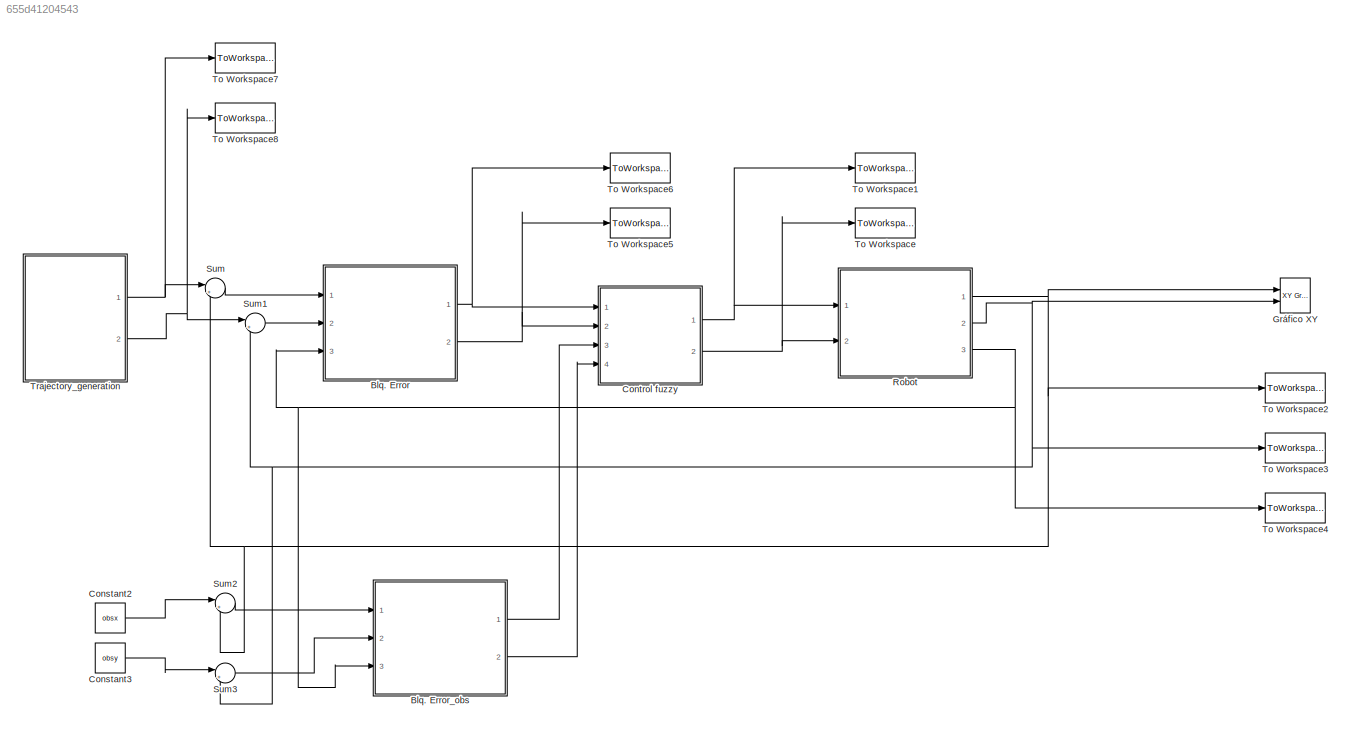
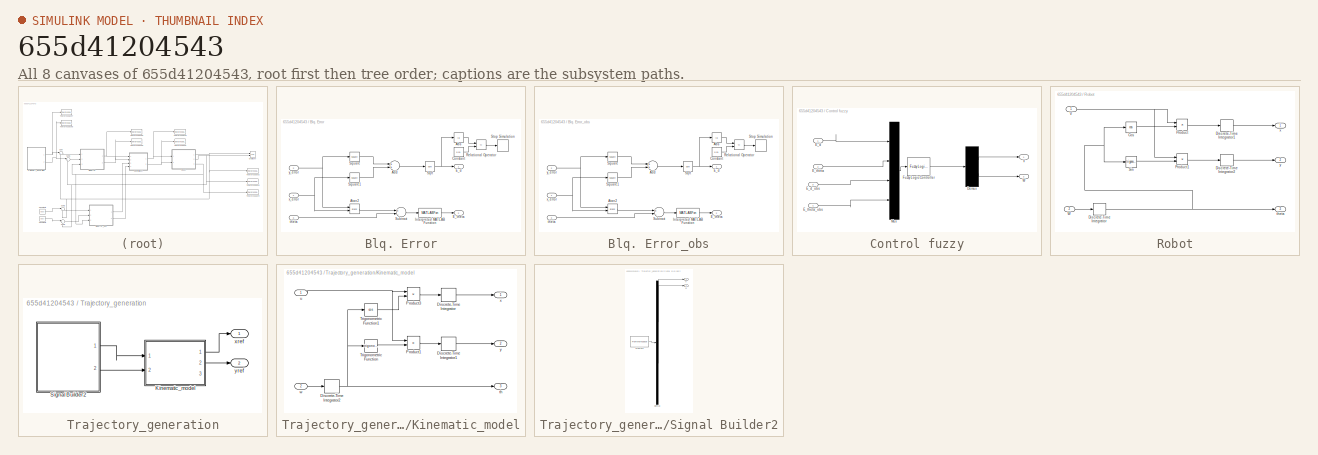
[diagram: thumbnail index - all 8 canvases of the model, root first then tree order]
MODEL slx_655d41204543
KIND model
CONFIG AbsTol = auto
CONFIG EnableMultiTasking = off
CONFIG FixedStep = Ts
CONFIG MaxStep = auto
CONFIG MinStep = auto
CONFIG RelTol = 1e-3
CONFIG SampleTimeConstraint = Unconstrained
CONFIG Solver = ode3
CONFIG SolverName = ode3
CONFIG StartTime = 0.0
CONFIG StopTime = 100.0
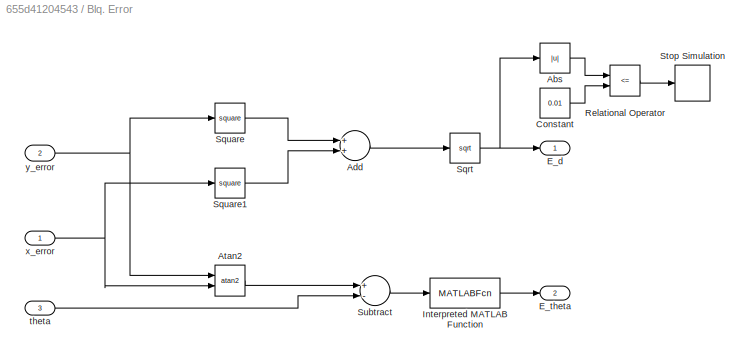
BLOCK [SubSystem] Blq. Error
  Ports = [3, 2]
  RequestExecContextInheritance = off
BLOCK [Abs] Blq. Error/Abs
  SaturateOnIntegerOverflow = off
BLOCK [Sum] Blq. Error/Add
  InputSameDT = off
  OutDataTypeStr = Inherit: Inherit via internal rule
  Ports = [2, 1]
  SaturateOnIntegerOverflow = off
BLOCK [Trigonometry] Blq. Error/Atan2
  Operator = atan2
  Ports = [2, 1]
BLOCK [Constant] Blq. Error/Constant
  Value = 0.01
BLOCK [Outport] Blq. Error/E_d
  IconDisplay = Port number
BLOCK [Outport] Blq. Error/E_theta
  IconDisplay = Port number
  OutMax = [pi]
  OutMin = [-pi]
  Port = 2
BLOCK [MATLABFcn] Blq. Error/Interpreted MATLAB Function
  MATLABFcn = wrapToPi
  Ports = [1, 1]
BLOCK [RelationalOperator] Blq. Error/Relational Operator
  InputSameDT = off
  Operator = <=
  OutDataTypeStr = boolean
  Ports = [2, 1]
  RndMeth = Simplest
BLOCK [Sqrt] Blq. Error/Sqrt
BLOCK [Math] Blq. Error/Square
  Operator = square
  Ports = [1, 1]
BLOCK [Math] Blq. Error/Square1
  Operator = square
  Ports = [1, 1]
BLOCK [Stop] Blq. Error/Stop Simulation
BLOCK [Sum] Blq. Error/Subtract
  InputSameDT = off
  Inputs = +-
  OutDataTypeStr = Inherit: Inherit via internal rule
  OutMax = [3.14]
  OutMin = [-3.14]
  Ports = [2, 1]
  SaturateOnIntegerOverflow = off
BLOCK [Inport] Blq. Error/theta
  IconDisplay = Port number
  Port = 3
BLOCK [Inport] Blq. Error/x_error
  IconDisplay = Port number
BLOCK [Inport] Blq. Error/y_error
  IconDisplay = Port number
  Port = 2
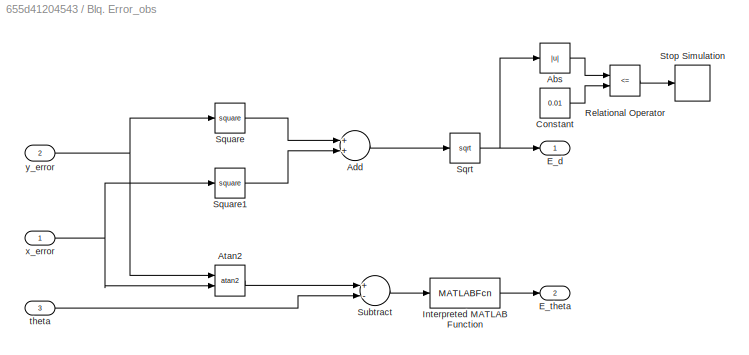
BLOCK [SubSystem] Blq. Error_obs
  Ports = [3, 2]
  RequestExecContextInheritance = off
BLOCK [Abs] Blq. Error_obs/Abs
  SaturateOnIntegerOverflow = off
BLOCK [Sum] Blq. Error_obs/Add
  InputSameDT = off
  OutDataTypeStr = Inherit: Inherit via internal rule
  Ports = [2, 1]
  SaturateOnIntegerOverflow = off
BLOCK [Trigonometry] Blq. Error_obs/Atan2
  Operator = atan2
  Ports = [2, 1]
BLOCK [Constant] Blq. Error_obs/Constant
  Value = 0.01
BLOCK [Outport] Blq. Error_obs/E_d
  IconDisplay = Port number
BLOCK [Outport] Blq. Error_obs/E_theta
  IconDisplay = Port number
  OutMax = [pi]
  OutMin = [-pi]
  Port = 2
BLOCK [MATLABFcn] Blq. Error_obs/Interpreted MATLAB Function
  MATLABFcn = wrapToPi
  Ports = [1, 1]
BLOCK [RelationalOperator] Blq. Error_obs/Relational Operator
  InputSameDT = off
  Operator = <=
  OutDataTypeStr = boolean
  Ports = [2, 1]
  RndMeth = Simplest
BLOCK [Sqrt] Blq. Error_obs/Sqrt
BLOCK [Math] Blq. Error_obs/Square
  Operator = square
  Ports = [1, 1]
BLOCK [Math] Blq. Error_obs/Square1
  Operator = square
  Ports = [1, 1]
BLOCK [Stop] Blq. Error_obs/Stop Simulation
BLOCK [Sum] Blq. Error_obs/Subtract
  InputSameDT = off
  Inputs = +-
  OutDataTypeStr = Inherit: Inherit via internal rule
  Ports = [2, 1]
  SaturateOnIntegerOverflow = off
BLOCK [Inport] Blq. Error_obs/theta
  IconDisplay = Port number
  Port = 3
BLOCK [Inport] Blq. Error_obs/x_error
  IconDisplay = Port number
BLOCK [Inport] Blq. Error_obs/y_error
  IconDisplay = Port number
  Port = 2
BLOCK [Constant] Constant2
  Value = obsx
BLOCK [Constant] Constant3
  Value = obsy
BLOCK [SubSystem] Control fuzzy
  Ports = [4, 2]
  RequestExecContextInheritance = off
BLOCK [Demux] Control fuzzy/Demux
  DisplayOption = bar
  Outputs = 2
  Ports = [1, 2]
BLOCK [Inport] Control fuzzy/E_d 
  IconDisplay = Port number
BLOCK [Inport] Control fuzzy/E_d_obs
  IconDisplay = Port number
  Port = 3
BLOCK [Inport] Control fuzzy/E_theta
  IconDisplay = Port number
  Port = 2
BLOCK [Inport] Control fuzzy/E_theta_obs
  IconDisplay = Port number
  Port = 4
BLOCK [Reference] Control fuzzy/Fuzzy Logic Controller  REF=fuzblock/Fuzzy Logic   (lib defined in mdl_858b3b3e7478)
Controller
  Ports = [1, 1]
  SourceBlock = fuzblock/Fuzzy Logic \nController
  SourceProductBaseCode = FL
  SourceProductName = Fuzzy Logic Toolbox
  SourceType = Fuzzy Inference System
BLOCK [Mux] Control fuzzy/Mux
  DisplayOption = bar
  Ports = [4, 1]
BLOCK [Outport] Control fuzzy/V
  IconDisplay = Port number
BLOCK [Outport] Control fuzzy/W 
  IconDisplay = Port number
  Port = 2
BLOCK [Reference] Gráfico XY  REF=simulink/Sinks/XY Graph
  Ports = [2]
  SourceBlock = simulink/Sinks/XY Graph
  SourceProductBaseCode = SL
  SourceProductName = Simulink
  SourceType = XY scope.
BLOCK [SubSystem] Robot
  Ports = [2, 3]
  RequestExecContextInheritance = off
BLOCK [Trigonometry] Robot/Cos
  Operator = cos
  Ports = [1, 1]
BLOCK [DiscreteIntegrator] Robot/Discrete-Time Integrator
  ICPrevOutput = DiscIntNeverNeededParam
  ICPrevScaledInput = DiscIntNeverNeededParam
  InitialConditionSetting = Auto
  Ports = [1, 1]
  SampleTime = -1
BLOCK [DiscreteIntegrator] Robot/Discrete-Time Integrator1
  ICPrevOutput = DiscIntNeverNeededParam
  ICPrevScaledInput = DiscIntNeverNeededParam
  InitialCondition = -4
  InitialConditionSetting = Auto
  Ports = [1, 1]
  SampleTime = -1
BLOCK [DiscreteIntegrator] Robot/Discrete-Time Integrator2
  ICPrevOutput = DiscIntNeverNeededParam
  ICPrevScaledInput = DiscIntNeverNeededParam
  InitialCondition = -4
  InitialConditionSetting = Auto
  Ports = [1, 1]
  SampleTime = -1
BLOCK [Product] Robot/Product
  InputSameDT = off
  OutDataTypeStr = Inherit: Inherit via internal rule
  Ports = [2, 1]
  RndMeth = Floor
  SaturateOnIntegerOverflow = off
BLOCK [Product] Robot/Product1
  InputSameDT = off
  OutDataTypeStr = Inherit: Inherit via internal rule
  Ports = [2, 1]
  RndMeth = Floor
  SaturateOnIntegerOverflow = off
BLOCK [Trigonometry] Robot/Sin
  Ports = [1, 1]
BLOCK [Inport] Robot/V
  IconDisplay = Port number
BLOCK [Inport] Robot/W
  IconDisplay = Port number
  Port = 2
BLOCK [Outport] Robot/theta
  IconDisplay = Port number
  Port = 3
BLOCK [Outport] Robot/x
  IconDisplay = Port number
BLOCK [Outport] Robot/y
  IconDisplay = Port number
  Port = 2
BLOCK [Sum] Sum
  IconShape = round
  InputSameDT = off
  Inputs = |+-
  OutDataTypeStr = Inherit: Inherit via internal rule
  Ports = [2, 1]
  SaturateOnIntegerOverflow = off
BLOCK [Sum] Sum1
  IconShape = round
  InputSameDT = off
  Inputs = |+-
  OutDataTypeStr = Inherit: Inherit via internal rule
  Ports = [2, 1]
  SaturateOnIntegerOverflow = off
BLOCK [Sum] Sum2
  IconShape = round
  InputSameDT = off
  Inputs = |+-
  OutDataTypeStr = Inherit: Inherit via internal rule
  Ports = [2, 1]
  SaturateOnIntegerOverflow = off
BLOCK [Sum] Sum3
  IconShape = round
  InputSameDT = off
  Inputs = |+-
  OutDataTypeStr = Inherit: Inherit via internal rule
  Ports = [2, 1]
  SaturateOnIntegerOverflow = off
BLOCK [ToWorkspace] To Workspace
  FixptAsFi = on
  MaxDataPoints = inf
  Ports = [1]
  SampleTime = -1
  Save2DSignal = 3-D array (concatenate along third dimension)
  SaveFormat = Structure With Time
  VariableName = W
BLOCK [ToWorkspace] To Workspace1
  FixptAsFi = on
  MaxDataPoints = inf
  Ports = [1]
  SampleTime = -1
  Save2DSignal = 3-D array (concatenate along third dimension)
  SaveFormat = Structure With Time
  VariableName = V
BLOCK [ToWorkspace] To Workspace2
  FixptAsFi = on
  MaxDataPoints = inf
  Ports = [1]
  SampleTime = -1
  Save2DSignal = 3-D array (concatenate along third dimension)
  SaveFormat = Structure With Time
  VariableName = salida_x
BLOCK [ToWorkspace] To Workspace3
  FixptAsFi = on
  MaxDataPoints = inf
  Ports = [1]
  SampleTime = -1
  Save2DSignal = 3-D array (concatenate along third dimension)
  SaveFormat = Structure With Time
  VariableName = salida_y
BLOCK [ToWorkspace] To Workspace4
  FixptAsFi = on
  MaxDataPoints = inf
  Ports = [1]
  SampleTime = -1
  Save2DSignal = 3-D array (concatenate along third dimension)
  SaveFormat = Structure With Time
  VariableName = salida_theta
BLOCK [ToWorkspace] To Workspace5
  FixptAsFi = on
  MaxDataPoints = inf
  Ports = [1]
  SampleTime = -1
  Save2DSignal = 3-D array (concatenate along third dimension)
  SaveFormat = Structure With Time
  VariableName = E_theta
BLOCK [ToWorkspace] To Workspace6
  FixptAsFi = on
  MaxDataPoints = inf
  Ports = [1]
  SampleTime = -1
  Save2DSignal = 3-D array (concatenate along third dimension)
  SaveFormat = Structure With Time
  VariableName = E_d
BLOCK [ToWorkspace] To Workspace7
  FixptAsFi = on
  MaxDataPoints = inf
  Ports = [1]
  SampleTime = -1
  Save2DSignal = 3-D array (concatenate along third dimension)
  SaveFormat = Structure With Time
  VariableName = salida_xref
BLOCK [ToWorkspace] To Workspace8
  FixptAsFi = on
  MaxDataPoints = inf
  Ports = [1]
  SampleTime = -1
  Save2DSignal = 3-D array (concatenate along third dimension)
  SaveFormat = Structure With Time
  VariableName = salida_yref
BLOCK [SubSystem] Trajectory_generation
  Ports = [0, 2]
  RequestExecContextInheritance = off
BLOCK [SubSystem] Trajectory_generation/Kinematic_model
  Ports = [2, 3]
  RequestExecContextInheritance = off
BLOCK [DiscreteIntegrator] Trajectory_generation/Kinematic_model/Discrete-Time Integrator
  ICPrevOutput = DiscIntNeverNeededParam
  ICPrevScaledInput = DiscIntNeverNeededParam
  InitialCondition = x_0
  Ports = [1, 1]
  SampleTime = Ts
BLOCK [DiscreteIntegrator] Trajectory_generation/Kinematic_model/Discrete-Time Integrator1
  ICPrevOutput = DiscIntNeverNeededParam
  ICPrevScaledInput = DiscIntNeverNeededParam
  InitialCondition = y_0
  Ports = [1, 1]
  SampleTime = Ts
BLOCK [DiscreteIntegrator] Trajectory_generation/Kinematic_model/Discrete-Time Integrator2
  ICPrevOutput = DiscIntNeverNeededParam
  ICPrevScaledInput = DiscIntNeverNeededParam
  InitialCondition = th_0
  Ports = [1, 1]
  SampleTime = Ts
BLOCK [Product] Trajectory_generation/Kinematic_model/Product1
  InputSameDT = off
  OutDataTypeStr = Inherit: Inherit via internal rule
  Ports = [2, 1]
  RndMeth = Floor
  SaturateOnIntegerOverflow = off
BLOCK [Product] Trajectory_generation/Kinematic_model/Product3
  InputSameDT = off
  OutDataTypeStr = Inherit: Inherit via internal rule
  Ports = [2, 1]
  RndMeth = Floor
  SaturateOnIntegerOverflow = off
BLOCK [Trigonometry] Trajectory_generation/Kinematic_model/Trigonometric Function
  Ports = [1, 1]
BLOCK [Trigonometry] Trajectory_generation/Kinematic_model/Trigonometric Function1
  Operator = cos
  Ports = [1, 1]
BLOCK [Outport] Trajectory_generation/Kinematic_model/th
  IconDisplay = Port number
  Port = 3
BLOCK [Inport] Trajectory_generation/Kinematic_model/u
  IconDisplay = Port number
BLOCK [Inport] Trajectory_generation/Kinematic_model/w
  IconDisplay = Port number
  Port = 2
BLOCK [Outport] Trajectory_generation/Kinematic_model/x
  IconDisplay = Port number
BLOCK [Outport] Trajectory_generation/Kinematic_model/y
  IconDisplay = Port number
  Port = 2
BLOCK [SubSystem] Trajectory_generation/Signal Builder2
  ClipboardFcn = sigbuilder_block('clipboard');
  CloseFcn = sigbuilder_block('close');
  ContinueFcn = sigbuilder_block('continue')
  CopyFcn = sigbuilder_block('copy');
  DeleteFcn = sigbuilder_block('delete');
  LoadFcn = sigbuilder_block('load');
  MaskHideContents = on
  ModelCloseFcn = sigbuilder_block('modelClose');
  NameChangeFcn = sigbuilder_block('namechange');
  OpenFcn = sigbuilder_block('open',[60 45 534.4 467.25 ]);
  PauseFcn = sigbuilder_block('pause')
  Ports = [0, 2]
  PreSaveFcn = sigbuilder_block('preSave');
  RequestExecContextInheritance = off
  StartFcn = sigbuilder_block('start');
  StopFcn = sigbuilder_block('stop');
  Tag = STV Subsys
BLOCK [Demux] Trajectory_generation/Signal Builder2/Demux
  Outputs = 2
  Ports = [1, 2]
  Tag = STV Demux
BLOCK [FromWorkspace] Trajectory_generation/Signal Builder2/FromWs
  SampleTime = 0
  Tag = STV FromWs
  VariableName = tuvar
  ZeroCross = on
BLOCK [Outport] Trajectory_generation/Signal Builder2/O
  IconDisplay = Port number
  Port = 2
  Tag = STV Outport
BLOCK [Outport] Trajectory_generation/Signal Builder2/V
  IconDisplay = Port number
  Tag = STV Outport
BLOCK [Outport] Trajectory_generation/xref
  IconDisplay = Port number
BLOCK [Outport] Trajectory_generation/yref
  IconDisplay = Port number
  Port = 2
LINE Blq. Error/Abs:1 -> Blq. Error/Relational Operator:1
LINE Blq. Error/Add:1 -> Blq. Error/Sqrt:1
LINE Blq. Error/Atan2:1 -> Blq. Error/Subtract:1
LINE Blq. Error/Constant:1 -> Blq. Error/Relational Operator:2
LINE Blq. Error/Interpreted MATLAB Function:1 -> Blq. Error/E_theta:1
LINE Blq. Error/Relational Operator:1 -> Blq. Error/Stop Simulation:1
NET Blq. Error/Sqrt:1 -> Blq. Error/Abs:1, Blq. Error/E_d:1
LINE Blq. Error/Square1:1 -> Blq. Error/Add:2
LINE Blq. Error/Square:1 -> Blq. Error/Add:1
LINE Blq. Error/Subtract:1 -> Blq. Error/Interpreted MATLAB Function:1
LINE Blq. Error/theta:1 -> Blq. Error/Subtract:2
NET Blq. Error/x_error:1 -> Blq. Error/Atan2:2, Blq. Error/Square1:1
NET Blq. Error/y_error:1 -> Blq. Error/Atan2:1, Blq. Error/Square:1
NET Blq. Error:1 -> Control fuzzy:1, To Workspace6:1
NET Blq. Error:2 -> Control fuzzy:2, To Workspace5:1
LINE Blq. Error_obs/Abs:1 -> Blq. Error_obs/Relational Operator:1
LINE Blq. Error_obs/Add:1 -> Blq. Error_obs/Sqrt:1
LINE Blq. Error_obs/Atan2:1 -> Blq. Error_obs/Subtract:1
LINE Blq. Error_obs/Constant:1 -> Blq. Error_obs/Relational Operator:2
LINE Blq. Error_obs/Interpreted MATLAB Function:1 -> Blq. Error_obs/E_theta:1
LINE Blq. Error_obs/Relational Operator:1 -> Blq. Error_obs/Stop Simulation:1
NET Blq. Error_obs/Sqrt:1 -> Blq. Error_obs/Abs:1, Blq. Error_obs/E_d:1
LINE Blq. Error_obs/Square1:1 -> Blq. Error_obs/Add:2
LINE Blq. Error_obs/Square:1 -> Blq. Error_obs/Add:1
LINE Blq. Error_obs/Subtract:1 -> Blq. Error_obs/Interpreted MATLAB Function:1
LINE Blq. Error_obs/theta:1 -> Blq. Error_obs/Subtract:2
NET Blq. Error_obs/x_error:1 -> Blq. Error_obs/Atan2:2, Blq. Error_obs/Square1:1
NET Blq. Error_obs/y_error:1 -> Blq. Error_obs/Atan2:1, Blq. Error_obs/Square:1
LINE Blq. Error_obs:1 -> Control fuzzy:3
LINE Blq. Error_obs:2 -> Control fuzzy:4
LINE Constant2:1 -> Sum2:1
LINE Constant3:1 -> Sum3:1
LINE Control fuzzy/Demux:1 -> Control fuzzy/V:1
LINE Control fuzzy/Demux:2 -> Control fuzzy/W :1
LINE Control fuzzy/E_d :1 -> Control fuzzy/Mux:1
LINE Control fuzzy/E_d_obs:1 -> Control fuzzy/Mux:3
LINE Control fuzzy/E_theta:1 -> Control fuzzy/Mux:2
LINE Control fuzzy/E_theta_obs:1 -> Control fuzzy/Mux:4
LINE Control fuzzy/Fuzzy Logic Controller:1 -> Control fuzzy/Demux:1
LINE Control fuzzy/Mux:1 -> Control fuzzy/Fuzzy Logic Controller:1
NET Control fuzzy:1 -> Robot:1, To Workspace1:1
NET Control fuzzy:2 -> Robot:2, To Workspace:1
LINE Robot/Cos:1 -> Robot/Product:2
LINE Robot/Discrete-Time Integrator1:1 -> Robot/x:1
LINE Robot/Discrete-Time Integrator2:1 -> Robot/y:1
NET Robot/Discrete-Time Integrator:1 -> Robot/Cos:1, Robot/Sin:1, Robot/theta:1
LINE Robot/Product1:1 -> Robot/Discrete-Time Integrator2:1
LINE Robot/Product:1 -> Robot/Discrete-Time Integrator1:1
LINE Robot/Sin:1 -> Robot/Product1:2
NET Robot/V:1 -> Robot/Product1:1, Robot/Product:1
LINE Robot/W:1 -> Robot/Discrete-Time Integrator:1
NET Robot:1 -> Gráfico XY:1, Sum2:2, Sum:2, To Workspace2:1
NET Robot:2 -> Gráfico XY:2, Sum1:2, Sum3:2, To Workspace3:1
NET Robot:3 -> Blq. Error:3, Blq. Error_obs:3, To Workspace4:1
LINE Sum1:1 -> Blq. Error:2
LINE Sum2:1 -> Blq. Error_obs:1
LINE Sum3:1 -> Blq. Error_obs:2
LINE Sum:1 -> Blq. Error:1
LINE Trajectory_generation/Kinematic_model/Discrete-Time Integrator1:1 -> Trajectory_generation/Kinematic_model/y:1
NET Trajectory_generation/Kinematic_model/Discrete-Time Integrator2:1 -> Trajectory_generation/Kinematic_model/Trigonometric Function1:1, Trajectory_generation/Kinematic_model/Trigonometric Function:1, Trajectory_generation/Kinematic_model/th:1
LINE Trajectory_generation/Kinematic_model/Discrete-Time Integrator:1 -> Trajectory_generation/Kinematic_model/x:1
LINE Trajectory_generation/Kinematic_model/Product1:1 -> Trajectory_generation/Kinematic_model/Discrete-Time Integrator1:1
LINE Trajectory_generation/Kinematic_model/Product3:1 -> Trajectory_generation/Kinematic_model/Discrete-Time Integrator:1
LINE Trajectory_generation/Kinematic_model/Trigonometric Function1:1 -> Trajectory_generation/Kinematic_model/Product3:2
LINE Trajectory_generation/Kinematic_model/Trigonometric Function:1 -> Trajectory_generation/Kinematic_model/Product1:2
NET Trajectory_generation/Kinematic_model/u:1 -> Trajectory_generation/Kinematic_model/Product1:1, Trajectory_generation/Kinematic_model/Product3:1
LINE Trajectory_generation/Kinematic_model/w:1 -> Trajectory_generation/Kinematic_model/Discrete-Time Integrator2:1
LINE Trajectory_generation/Kinematic_model:1 -> Trajectory_generation/xref:1
LINE Trajectory_generation/Kinematic_model:2 -> Trajectory_generation/yref:1
LINE Trajectory_generation/Signal Builder2/Demux:1 -> Trajectory_generation/Signal Builder2/V:1
LINE Trajectory_generation/Signal Builder2/Demux:2 -> Trajectory_generation/Signal Builder2/O:1
LINE Trajectory_generation/Signal Builder2/FromWs:1 -> Trajectory_generation/Signal Builder2/Demux:1
LINE Trajectory_generation/Signal Builder2:1 -> Trajectory_generation/Kinematic_model:1
LINE Trajectory_generation/Signal Builder2:2 -> Trajectory_generation/Kinematic_model:2
NET Trajectory_generation:1 -> Sum:1, To Workspace7:1
NET Trajectory_generation:2 -> Sum1:1, To Workspace8:1
note: NET lines group one-source signal fan-out (src -> all destinations, sorted); 1:1 wires keep LINE
